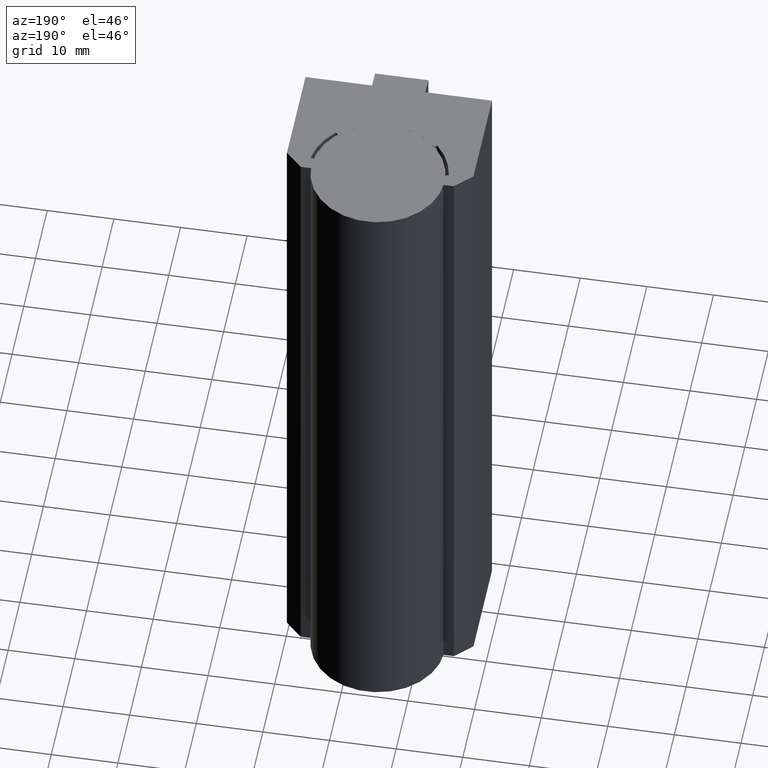
[diagram: clean part render]
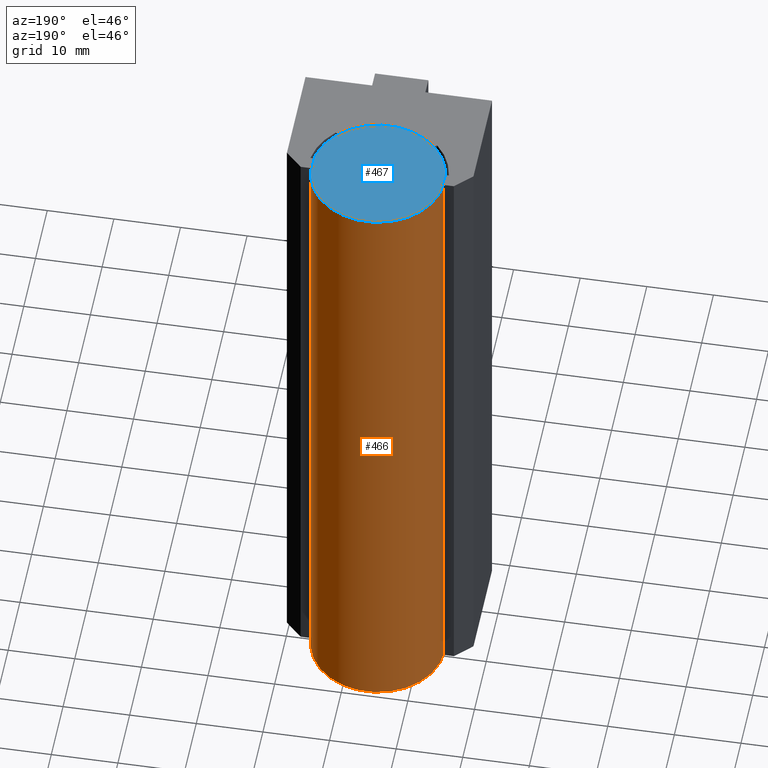
[diagram: same view with the hole feature highlighted: cylindrical wall and planar end face, labeled with their STEP entity ids]
A machine part, auxiliary view. The highlighted faces form one hole feature of diameter 20 mm: the cylindrical wall (entity #466, orange) and its adjacent planar end face (entity #467, blue) — they share a circular edge in the B-rep.
Wall:
#26=CIRCLE('',#522,10.);
#27=CIRCLE('',#523,10.);
#31=CYLINDRICAL_SURFACE('',#521,10.);
#54=FACE_OUTER_BOUND('',#79,.T.);
#79=EDGE_LOOP('',(#417,#418,#419,#420));
#136=LINE('',#776,#191);
#191=VECTOR('',#642,10.);
#232=VERTEX_POINT('',#773);
#233=VERTEX_POINT('',#775);
#294=EDGE_CURVE('',#232,#232,#26,.T.);
#295=EDGE_CURVE('',#232,#233,#136,.T.);
#296=EDGE_CURVE('',#233,#233,#27,.T.);
#417=ORIENTED_EDGE('',*,*,#294,.F.);
#418=ORIENTED_EDGE('',*,*,#295,.T.);
#419=ORIENTED_EDGE('',*,*,#296,.F.);
#420=ORIENTED_EDGE('',*,*,#295,.F.);
#466=ADVANCED_FACE('',(#54),#31,.T.);
#521=AXIS2_PLACEMENT_3D('',#772,#638,#639);
#522=AXIS2_PLACEMENT_3D('',#774,#640,#641);
#523=AXIS2_PLACEMENT_3D('',#777,#643,#644);
#638=DIRECTION('center_axis',(0.,0.,-1.));
#639=DIRECTION('ref_axis',(1.,0.,0.));
#640=DIRECTION('center_axis',(0.,0.,-1.));
#641=DIRECTION('ref_axis',(1.,0.,0.));
#642=DIRECTION('',(0.,0.,1.));
#643=DIRECTION('center_axis',(0.,0.,1.));
#644=DIRECTION('ref_axis',(1.,0.,0.));
#772=CARTESIAN_POINT('Origin',(-13.8756867600048,20.7025117127487,100.));
#773=CARTESIAN_POINT('',(-23.8756867600048,20.7025117127487,0.));
#774=CARTESIAN_POINT('Origin',(-13.8756867600048,20.7025117127487,0.));
#775=CARTESIAN_POINT('',(-23.8756867600048,20.7025117127487,100.));
#776=CARTESIAN_POINT('',(-23.8756867600048,20.7025117127487,100.));
#777=CARTESIAN_POINT('Origin',(-13.8756867600048,20.7025117127487,100.));
End face:
#27=CIRCLE('',#523,10.);
#55=FACE_OUTER_BOUND('',#80,.T.);
#80=EDGE_LOOP('',(#421));
#233=VERTEX_POINT('',#775);
#296=EDGE_CURVE('',#233,#233,#27,.T.);
#421=ORIENTED_EDGE('',*,*,#296,.T.);
#442=PLANE('',#524);
#467=ADVANCED_FACE('',(#55),#442,.T.);
#523=AXIS2_PLACEMENT_3D('',#777,#643,#644);
#524=AXIS2_PLACEMENT_3D('',#778,#645,#646);
#643=DIRECTION('center_axis',(0.,0.,1.));
#644=DIRECTION('ref_axis',(1.,0.,0.));
#645=DIRECTION('center_axis',(0.,0.,1.));
#646=DIRECTION('ref_axis',(1.,0.,0.));
#775=CARTESIAN_POINT('',(-23.8756867600048,20.7025117127487,100.));
#777=CARTESIAN_POINT('Origin',(-13.8756867600048,20.7025117127487,100.));
#778=CARTESIAN_POINT('Origin',(-13.8756867600048,20.7025117127487,100.));